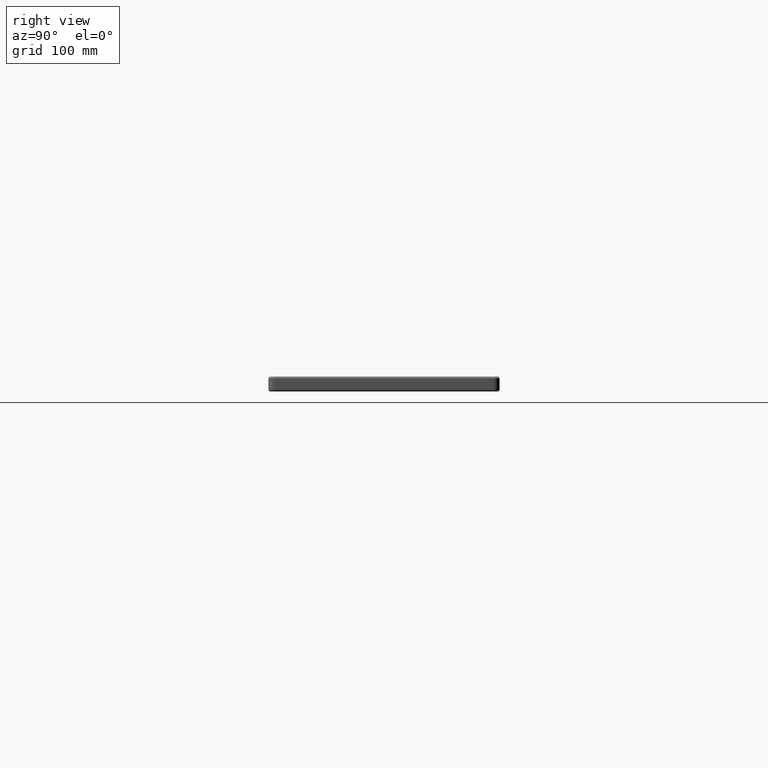
[diagram: clean part render]
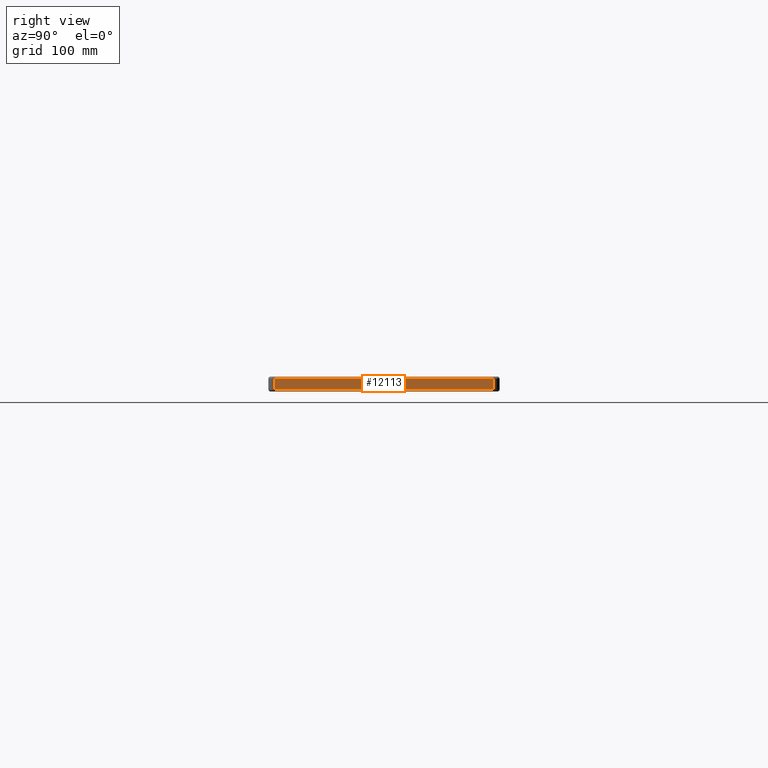
[diagram: same view with one face highlighted and labeled with its STEP entity id]
A machine part, right view. The second image highlights one B-rep face of the part: STEP entity #12113.
In plain terms, the highlighted planar face has unit normal (1, 0, 0).
Its self-contained STEP definition (entity closure, byte-faithful):
#291 = LINE ( 'NONE', #1900, #6518 ) ;
#457 = DIRECTION ( 'NONE',  ( -0.0000000000000000000, -1.000000000000000000, 0.0000000000000000000 ) ) ;
#661 = CARTESIAN_POINT ( 'NONE',  ( 300.0000000000001100, -95.00000000000002800, -13.00000000000000000 ) ) ;
#767 = CARTESIAN_POINT ( 'NONE',  ( 300.0000000000001100, -95.00000000000002800, -11.00000000000000000 ) ) ;
#872 = FACE_OUTER_BOUND ( 'NONE', #3646, .T. ) ;
#1363 = DIRECTION ( 'NONE',  ( 0.0000000000000000000, 0.0000000000000000000, -1.000000000000000000 ) ) ;
#1900 = CARTESIAN_POINT ( 'NONE',  ( 300.0000000000000600, 95.00000000000017100, -13.00000000000000000 ) ) ;
#2211 = VECTOR ( 'NONE', #3623, 1000.000000000000000 ) ;
#2372 = ORIENTED_EDGE ( 'NONE', *, *, #2900, .T. ) ;
#2900 = EDGE_CURVE ( 'NONE', #4069, #9352, #6137, .T. ) ;
#3190 = ORIENTED_EDGE ( 'NONE', *, *, #10282, .T. ) ;
#3362 = DIRECTION ( 'NONE',  ( 1.000000000000000000, 0.0000000000000000000, 0.0000000000000000000 ) ) ;
#3623 = DIRECTION ( 'NONE',  ( -0.0000000000000000000, 1.000000000000000000, 0.0000000000000000000 ) ) ;
#3646 = EDGE_LOOP ( 'NONE', ( #13482, #2372, #3190, #6829 ) ) ;
#3777 = DIRECTION ( 'NONE',  ( 0.0000000000000000000, 0.0000000000000000000, 1.000000000000000000 ) ) ;
#3834 = CARTESIAN_POINT ( 'NONE',  ( 300.0000000000001100, -95.00000000000002800, -2.000000000000001800 ) ) ;
#4069 = VERTEX_POINT ( 'NONE', #767 ) ;
#4322 = CARTESIAN_POINT ( 'NONE',  ( 300.0000000000000600, 95.00000000000017100, -2.000000000000003600 ) ) ;
#4457 = PLANE ( 'NONE',  #5963 ) ;
#5755 = CARTESIAN_POINT ( 'NONE',  ( 300.0000000000000600, 95.00000000000017100, -11.00000000000000000 ) ) ;
#5963 = AXIS2_PLACEMENT_3D ( 'NONE', #11776, #3362, #1363 ) ;
#6137 = LINE ( 'NONE', #10092, #2211 ) ;
#6518 = VECTOR ( 'NONE', #9229, 1000.000000000000000 ) ;
#6729 = CARTESIAN_POINT ( 'NONE',  ( 300.0000000000000600, -95.00000000000002800, -2.000000000000000000 ) ) ;
#6829 = ORIENTED_EDGE ( 'NONE', *, *, #8325, .T. ) ;
#6937 = VERTEX_POINT ( 'NONE', #3834 ) ;
#8325 = EDGE_CURVE ( 'NONE', #11495, #6937, #10079, .T. ) ;
#8816 = LINE ( 'NONE', #661, #9796 ) ;
#9229 = DIRECTION ( 'NONE',  ( 0.0000000000000000000, 0.0000000000000000000, 1.000000000000000000 ) ) ;
#9352 = VERTEX_POINT ( 'NONE', #5755 ) ;
#9796 = VECTOR ( 'NONE', #3777, 1000.000000000000000 ) ;
#10079 = LINE ( 'NONE', #6729, #11233 ) ;
#10092 = CARTESIAN_POINT ( 'NONE',  ( 300.0000000000000600, -95.00000000000002800, -11.00000000000000000 ) ) ;
#10282 = EDGE_CURVE ( 'NONE', #9352, #11495, #291, .T. ) ;
#10802 = EDGE_CURVE ( 'NONE', #4069, #6937, #8816, .T. ) ;
#11233 = VECTOR ( 'NONE', #457, 1000.000000000000000 ) ;
#11495 = VERTEX_POINT ( 'NONE', #4322 ) ;
#11776 = CARTESIAN_POINT ( 'NONE',  ( 300.0000000000000600, -95.00000000000002800, -13.00000000000000000 ) ) ;
#12113 = ADVANCED_FACE ( 'NONE', ( #872 ), #4457, .T. ) ;
#13482 = ORIENTED_EDGE ( 'NONE', *, *, #10802, .F. ) ;